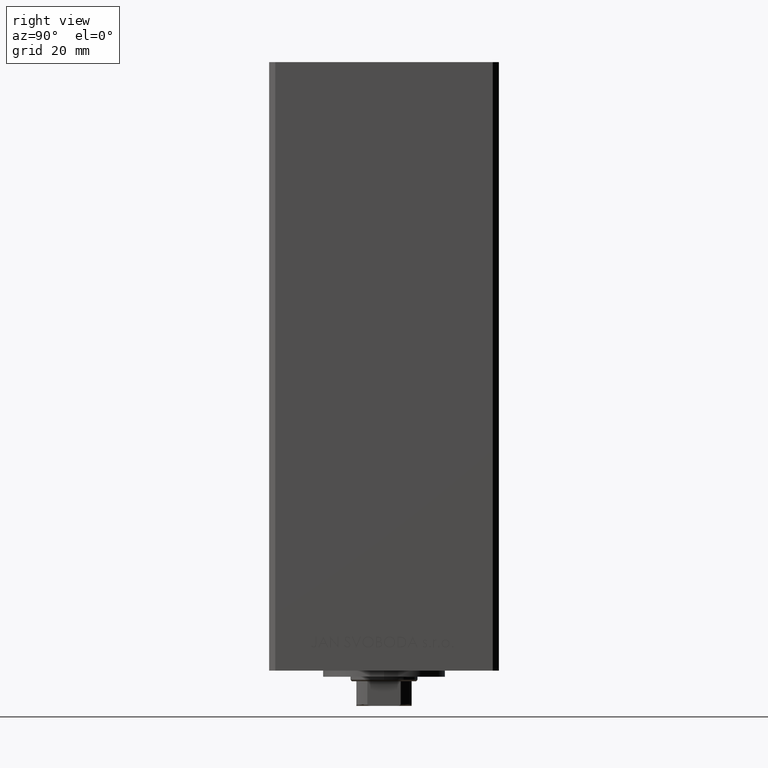
[diagram: clean part render]
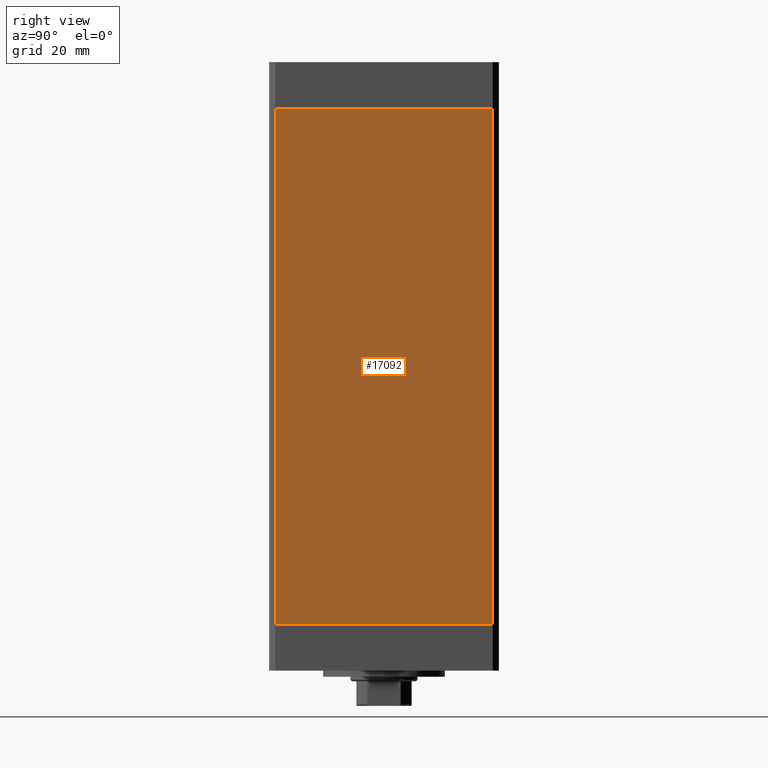
[diagram: same view with one face highlighted and labeled with its STEP entity id]
A machine part, right view. The second image highlights one B-rep face of the part: STEP entity #17092.
In plain terms, the highlighted planar face has unit normal (1, -0, 0).
Its self-contained STEP definition (entity closure, byte-faithful):
#3843 = CARTESIAN_POINT ( 'NONE',  ( 42.49999999999998579, -35.50000000000000711, 0.000000000000000000 ) ) ;
#4439 = EDGE_CURVE ( 'NONE', #33782, #42776, #4992, .T. ) ;
#4992 = LINE ( 'NONE', #23294, #18302 ) ;
#6795 = ORIENTED_EDGE ( 'NONE', *, *, #43447, .T. ) ;
#7272 = VERTEX_POINT ( 'NONE', #3843 ) ;
#8518 = DIRECTION ( 'NONE',  ( -0.000000000000000000, -0.000000000000000000, -1.000000000000000000 ) ) ;
#10468 = ORIENTED_EDGE ( 'NONE', *, *, #45904, .T. ) ;
#11136 = FACE_OUTER_BOUND ( 'NONE', #41908, .T. ) ;
#14220 = CARTESIAN_POINT ( 'NONE',  ( 42.50000000000000711, 35.50000000000001421, 0.000000000000000000 ) ) ;
#15942 = VERTEX_POINT ( 'NONE', #34420 ) ;
#15949 = CARTESIAN_POINT ( 'NONE',  ( 42.49999999999998579, -35.50000000000000711, 168.5000000000000000 ) ) ;
#16714 = LINE ( 'NONE', #35523, #44787 ) ;
#17092 = ADVANCED_FACE ( 'NONE', ( #11136 ), #44800, .T. ) ;
#18302 = VECTOR ( 'NONE', #38397, 1000.000000000000000 ) ;
#18413 = LINE ( 'NONE', #14220, #24379 ) ;
#19164 = LINE ( 'NONE', #15949, #47259 ) ;
#22358 = DIRECTION ( 'NONE',  ( -2.931927001650941360E-16, -1.000000000000000000, 0.000000000000000000 ) ) ;
#23294 = CARTESIAN_POINT ( 'NONE',  ( 42.50000000000000711, 35.50000000000001421, 168.5000000000000000 ) ) ;
#23938 = EDGE_CURVE ( 'NONE', #42776, #7272, #18413, .T. ) ;
#24379 = VECTOR ( 'NONE', #22358, 1000.000000000000000 ) ;
#29465 = DIRECTION ( 'NONE',  ( 2.931927001650941360E-16, 1.000000000000000000, 0.000000000000000000 ) ) ;
#29812 = CARTESIAN_POINT ( 'NONE',  ( 42.50000000000000711, 35.50000000000001421, 168.5000000000000000 ) ) ;
#30591 = ORIENTED_EDGE ( 'NONE', *, *, #4439, .F. ) ;
#31792 = DIRECTION ( 'NONE',  ( -2.931927001650941360E-16, -1.000000000000000000, 0.000000000000000000 ) ) ;
#32737 = ORIENTED_EDGE ( 'NONE', *, *, #23938, .F. ) ;
#33782 = VERTEX_POINT ( 'NONE', #29812 ) ;
#34420 = CARTESIAN_POINT ( 'NONE',  ( 42.49999999999998579, -35.50000000000000711, 168.5000000000000000 ) ) ;
#35523 = CARTESIAN_POINT ( 'NONE',  ( 42.50000000000000711, 35.50000000000001421, 168.5000000000000000 ) ) ;
#38397 = DIRECTION ( 'NONE',  ( -0.000000000000000000, -0.000000000000000000, -1.000000000000000000 ) ) ;
#41531 = AXIS2_PLACEMENT_3D ( 'NONE', #44550, #45041, #29465 ) ;
#41908 = EDGE_LOOP ( 'NONE', ( #32737, #30591, #6795, #10468 ) ) ;
#42776 = VERTEX_POINT ( 'NONE', #43858 ) ;
#43447 = EDGE_CURVE ( 'NONE', #33782, #15942, #16714, .T. ) ;
#43858 = CARTESIAN_POINT ( 'NONE',  ( 42.50000000000000711, 35.50000000000001421, 0.000000000000000000 ) ) ;
#44550 = CARTESIAN_POINT ( 'NONE',  ( 42.50000000000000711, 35.50000000000001421, 168.5000000000000000 ) ) ;
#44787 = VECTOR ( 'NONE', #31792, 1000.000000000000000 ) ;
#44800 = PLANE ( 'NONE',  #41531 ) ;
#45041 = DIRECTION ( 'NONE',  ( 1.000000000000000000, -2.931927001650941360E-16, 0.000000000000000000 ) ) ;
#45904 = EDGE_CURVE ( 'NONE', #15942, #7272, #19164, .T. ) ;
#47259 = VECTOR ( 'NONE', #8518, 1000.000000000000000 ) ;